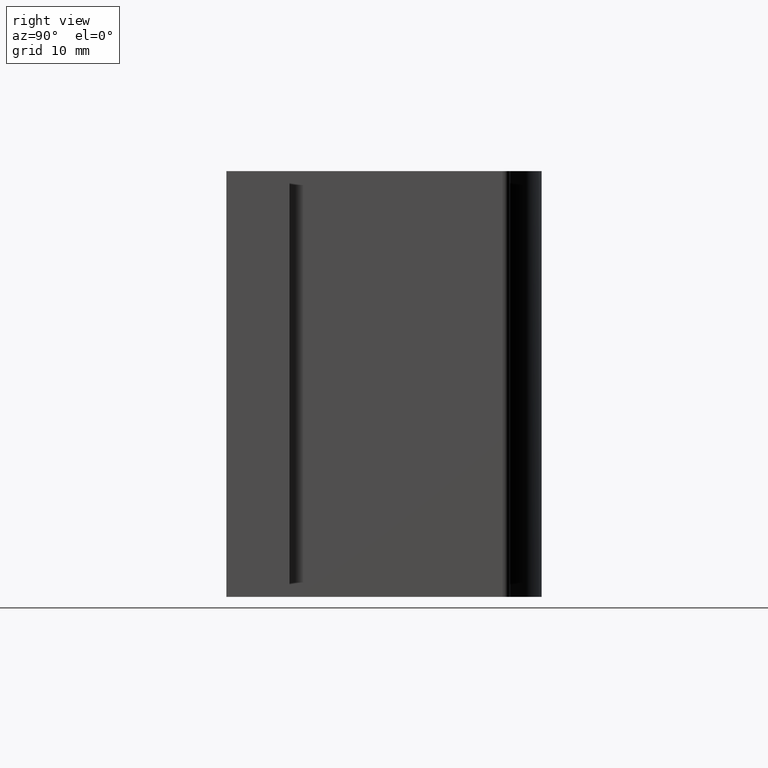
[diagram: clean part render]
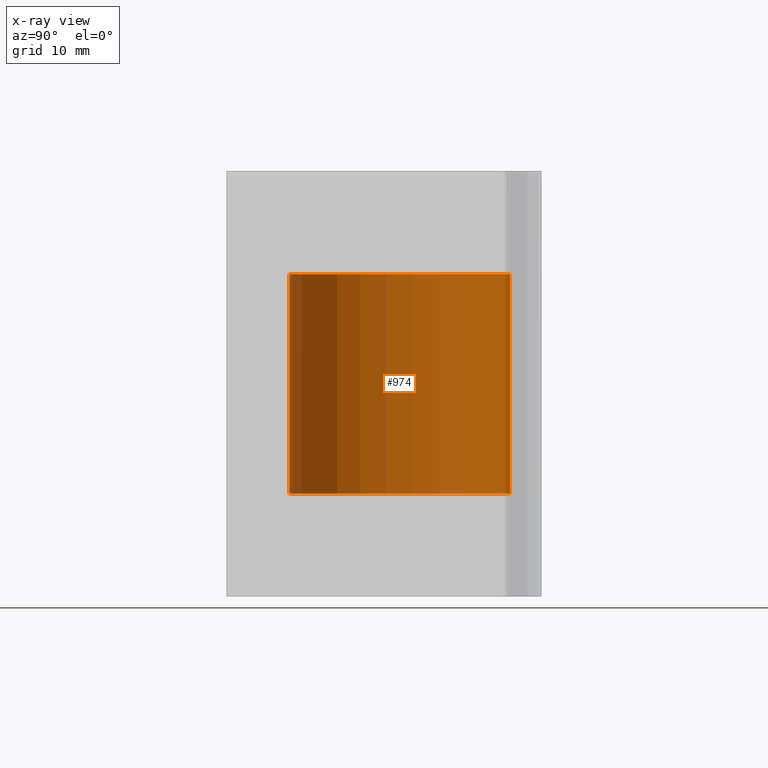
[diagram: x-ray — body ghosted, one internal face saturated and labeled with its STEP entity id]
A machine part, right view, then the same camera in x-ray: the body is ghosted and one INTERNAL B-rep face — a face not visible from any outside direction — is saturated and labeled: STEP entity #974.
In plain terms, the highlighted cylindrical surface (partial cylindrical patch) has radius 11.1125 mm, axis along (0, -0, -1).
Its self-contained STEP definition (entity closure, byte-faithful):
#111 = LINE ( 'NONE', #3232, #1840 ) ;
#275 = CARTESIAN_POINT ( 'NONE',  ( -5.357829746269672593E-17, 0.4375000000000001665, 0.4353499999999998482 ) ) ;
#303 = CARTESIAN_POINT ( 'NONE',  ( -5.357829746269670744E-17, 0.4375000000000000555, -0.6020500000000001961 ) ) ;
#488 = CARTESIAN_POINT ( 'NONE',  ( 0.0000000000000000000, 2.041486214178638391E-17, -0.4353500000000000703 ) ) ;
#576 = CARTESIAN_POINT ( 'NONE',  ( 0.0000000000000000000, 0.0000000000000000000, -0.6020500000000000851 ) ) ;
#611 = EDGE_LOOP ( 'NONE', ( #3392, #3520, #3415, #3563 ) ) ;
#673 = VERTEX_POINT ( 'NONE', #2915 ) ;
#818 = EDGE_CURVE ( 'NONE', #673, #3777, #1275, .T. ) ;
#888 = CIRCLE ( 'NONE', #934, 0.4375000000000000555 ) ;
#904 = DIRECTION ( 'NONE',  ( 0.0000000000000000000, -1.224646799147353207E-16, -1.000000000000000000 ) ) ;
#934 = AXIS2_PLACEMENT_3D ( 'NONE', #4000, #904, #2475 ) ;
#974 = ADVANCED_FACE ( 'NONE', ( #1943 ), #3264, .T. ) ;
#1165 = EDGE_CURVE ( 'NONE', #1663, #3777, #1744, .T. ) ;
#1228 = DIRECTION ( 'NONE',  ( 0.0000000000000000000, -1.224646799147353207E-16, -1.000000000000000000 ) ) ;
#1275 = CIRCLE ( 'NONE', #1634, 0.4375000000000000555 ) ;
#1289 = CARTESIAN_POINT ( 'NONE',  ( 0.0000000000000000000, -0.4374999999999998890, 0.4353500000000000703 ) ) ;
#1472 = AXIS2_PLACEMENT_3D ( 'NONE', #576, #1228, #1499 ) ;
#1499 = DIRECTION ( 'NONE',  ( 0.0000000000000000000, -1.000000000000000000, 3.122111992759157471E-16 ) ) ;
#1634 = AXIS2_PLACEMENT_3D ( 'NONE', #488, #2556, #2257 ) ;
#1663 = VERTEX_POINT ( 'NONE', #275 ) ;
#1744 = LINE ( 'NONE', #303, #2419 ) ;
#1840 = VECTOR ( 'NONE', #1951, 39.37007874015748143 ) ;
#1943 = FACE_OUTER_BOUND ( 'NONE', #611, .T. ) ;
#1951 = DIRECTION ( 'NONE',  ( 0.0000000000000000000, -1.224646799147353207E-16, -1.000000000000000000 ) ) ;
#2257 = DIRECTION ( 'NONE',  ( 0.0000000000000000000, -1.000000000000000000, 3.122111992759157471E-16 ) ) ;
#2419 = VECTOR ( 'NONE', #3342, 39.37007874015748143 ) ;
#2427 = VERTEX_POINT ( 'NONE', #1289 ) ;
#2475 = DIRECTION ( 'NONE',  ( 0.0000000000000000000, -1.000000000000000000, 3.122111992759157471E-16 ) ) ;
#2556 = DIRECTION ( 'NONE',  ( 0.0000000000000000000, -1.224646799147353207E-16, -1.000000000000000000 ) ) ;
#2915 = CARTESIAN_POINT ( 'NONE',  ( 0.0000000000000000000, -0.4375000000000000555, -0.4353499999999999037 ) ) ;
#3232 = CARTESIAN_POINT ( 'NONE',  ( 0.0000000000000000000, -0.4375000000000000555, -0.6020499999999999741 ) ) ;
#3264 = CYLINDRICAL_SURFACE ( 'NONE', #1472, 0.4375000000000000555 ) ;
#3342 = DIRECTION ( 'NONE',  ( 0.0000000000000000000, -1.224646799147353207E-16, -1.000000000000000000 ) ) ;
#3392 = ORIENTED_EDGE ( 'NONE', *, *, #3852, .T. ) ;
#3415 = ORIENTED_EDGE ( 'NONE', *, *, #818, .F. ) ;
#3485 = EDGE_CURVE ( 'NONE', #2427, #673, #111, .T. ) ;
#3520 = ORIENTED_EDGE ( 'NONE', *, *, #1165, .T. ) ;
#3563 = ORIENTED_EDGE ( 'NONE', *, *, #3485, .F. ) ;
#3648 = CARTESIAN_POINT ( 'NONE',  ( -5.357829746269670744E-17, 0.4375000000000000555, -0.4353500000000001258 ) ) ;
#3777 = VERTEX_POINT ( 'NONE', #3648 ) ;
#3852 = EDGE_CURVE ( 'NONE', #2427, #1663, #888, .T. ) ;
#4000 = CARTESIAN_POINT ( 'NONE',  ( 0.0000000000000000000, 1.270448589435464338E-16, 0.4353499999999999037 ) ) ;